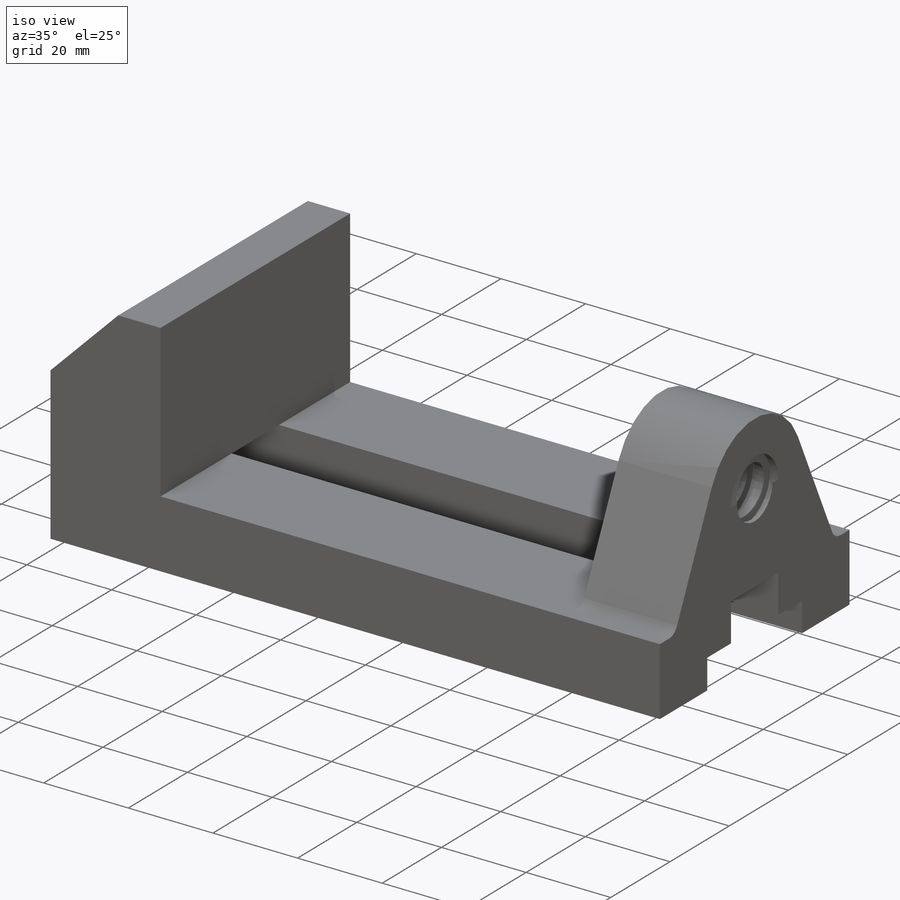
[diagram: iso view]
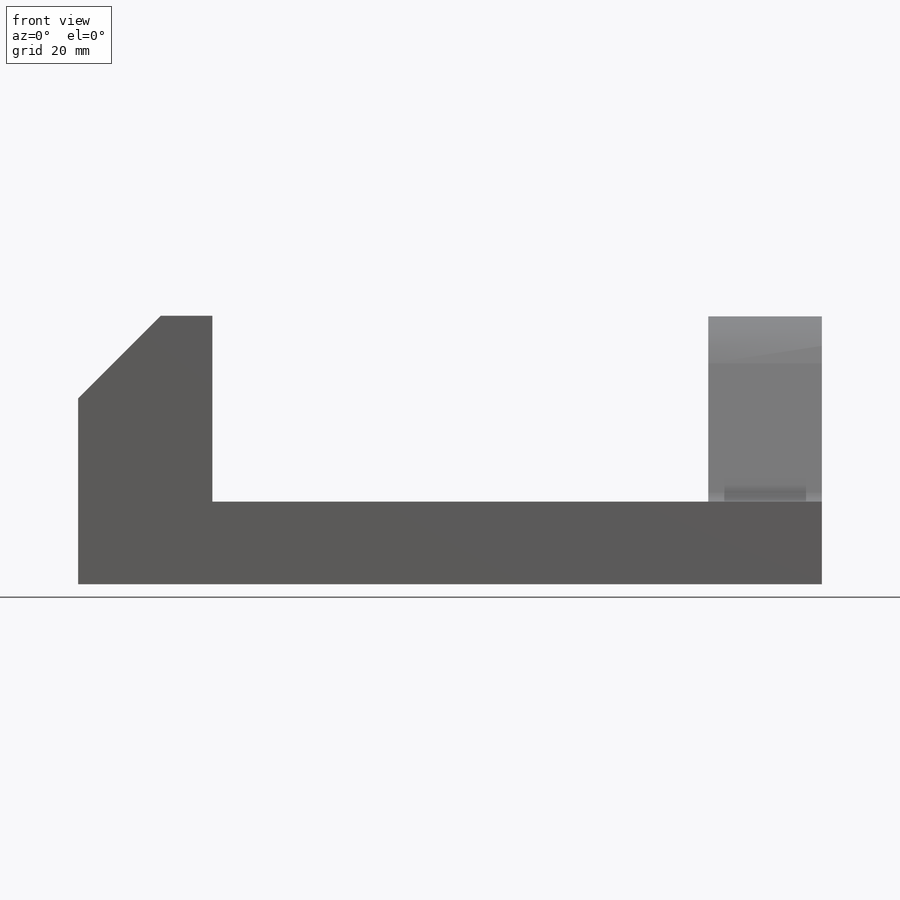
[diagram: front view]
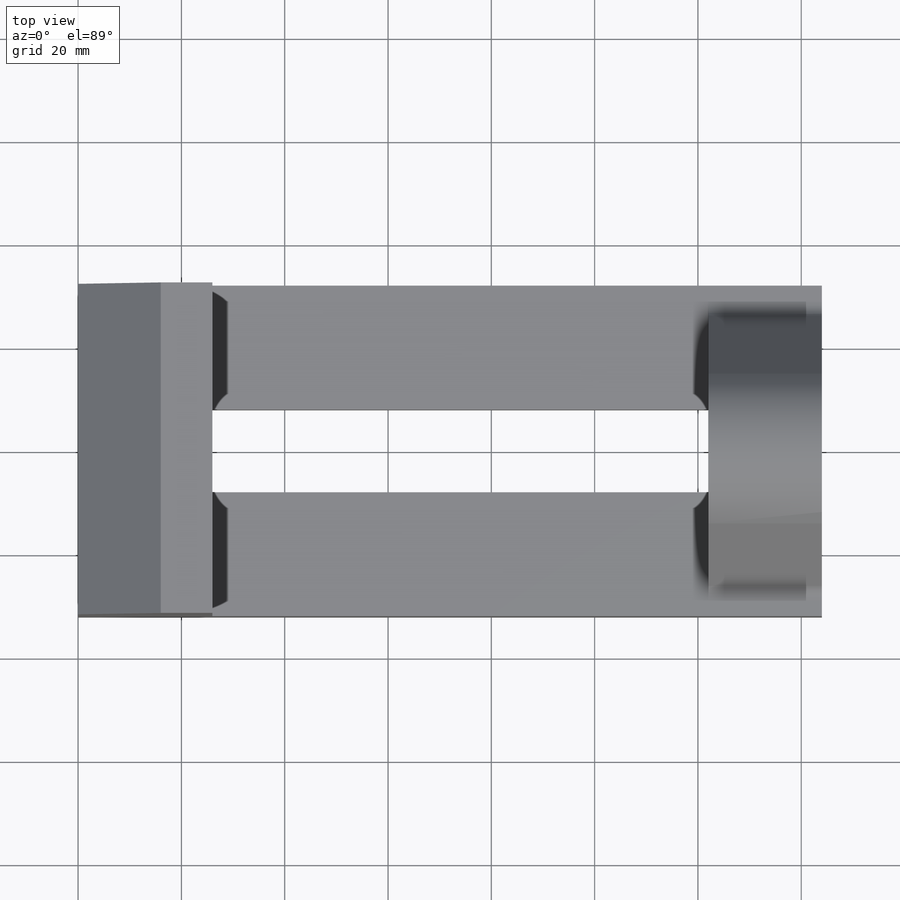
[diagram: top view]
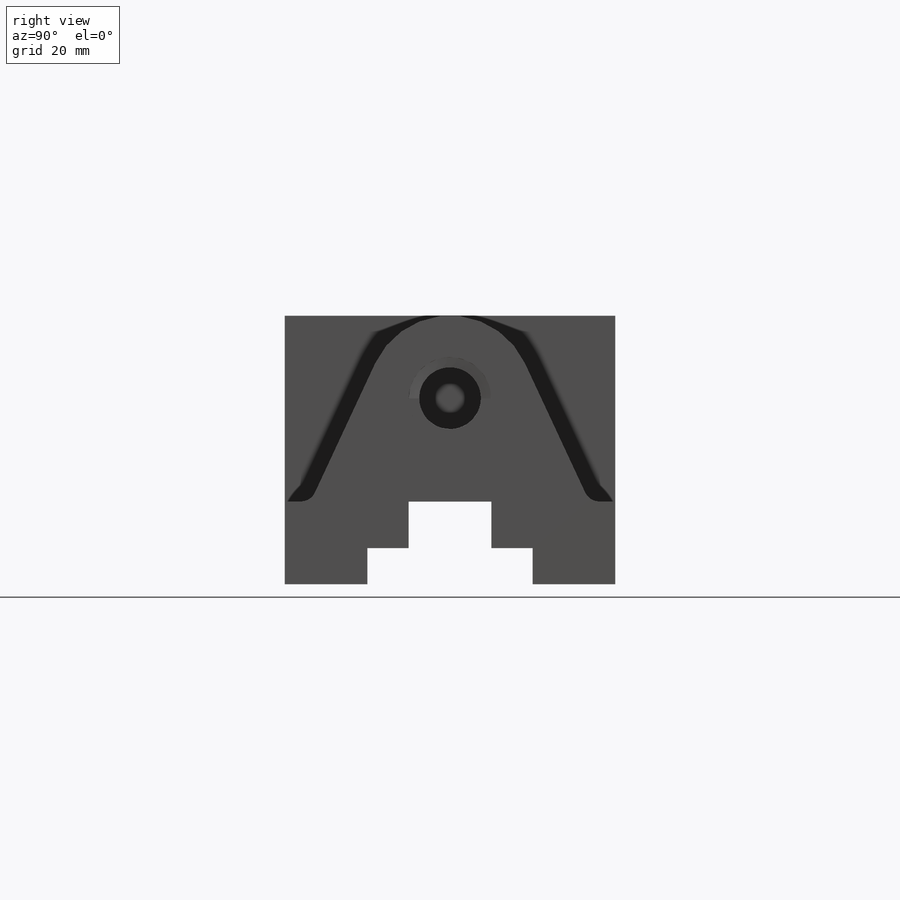
[diagram: right view]
SOLIDWORKS PART (.sldprt)
format: sldprt  version: not decoded by parser v0  size: 397,312 bytes
history: native  units: mm
features: sketch x8, thread x4, extrude x2, material x1, fillet x1, cut_extrude x1, hole x1, helix x1, sweep x1 (+15 scaffold rows collapsed; 1 parser-record rows omitted)
feature tree (36):
  parser-record x1  (decoder bookkeeping rows leaked as tree rows — omitted from the tree; the rows remain in map.json)
  scaffold x15  (default folders/planes/origin — collapsed)
  material  "Ferro fundido cinza"
  sketch  "Sketch1"  dims[D1=144.0mm D2=16.0mm D3=10.0mm D4=16.0mm D5=16.0mm D6=36.0mm]
  extrude  "Extrude1"  Depth=64mm
  sketch  "Sketch2"  dims[c1.D1=16.0mm c1.D2=3.0mm c2.D1=16.0mm c2.D3=3.0mm c2.D2=3.0mm c3.D3=58.0mm c3.D2=~31.38471mm c4.D2=50.0deg c4.D3=6.0mm]
  extrude  "Extrude3"  Depth=22mm
  fillet  "Fillet1"  Radius=3mm
  sketch  "Sketch3"  dims[D1=12.0mm]
  sketch  "Sketch4"  dims[D1=16.0mm D2=32.0mm D3=16.0mm D4=7.0mm]
  cut_extrude  "Cut-Extrude1"  [1 undecoded]
  hole  "Furo roscado de M6x1.01"  Diameter=5mm Depth=12mm
  sketch  "Esboço2"  dims[D1=70.0mm D2=37.0mm D3=10.0mm D4=10.0mm]
  sketch  "Esboço1"  dims[hole-wizard template sketch: 47 standard entries collapsed; hole parameters kept: c15.Tap Drill Depth=12.0mm c15.D3=~14.816244mm c15.Drill Angle=118.0deg]
  thread  "Rosca de furo1"  Diameter=8mm  [1 undecoded]
  thread  "Rosca de furo2"  Diameter=8mm  [1 undecoded]
  thread  "Rosca de furo3"  Diameter=8mm  [1 undecoded]
  thread  "Rosca de furo4"  Diameter=8mm  [1 undecoded]
  sketch  "Esboço3"
  helix  "Hélice/Espiral1"  Pitch=28mm
  sketch  "Esboço4"  dims[D1=2.0mm D2=2.0mm]
  sweep  "Varredura de corte2"
decode coverage: 16 of 19 modeling features carry decoded parameters
note: ~ marks probable driven/reference dimensions
note: 5 parameter values undecoded
note: suppression state not decoded; provenance and decode notes live in map.json
